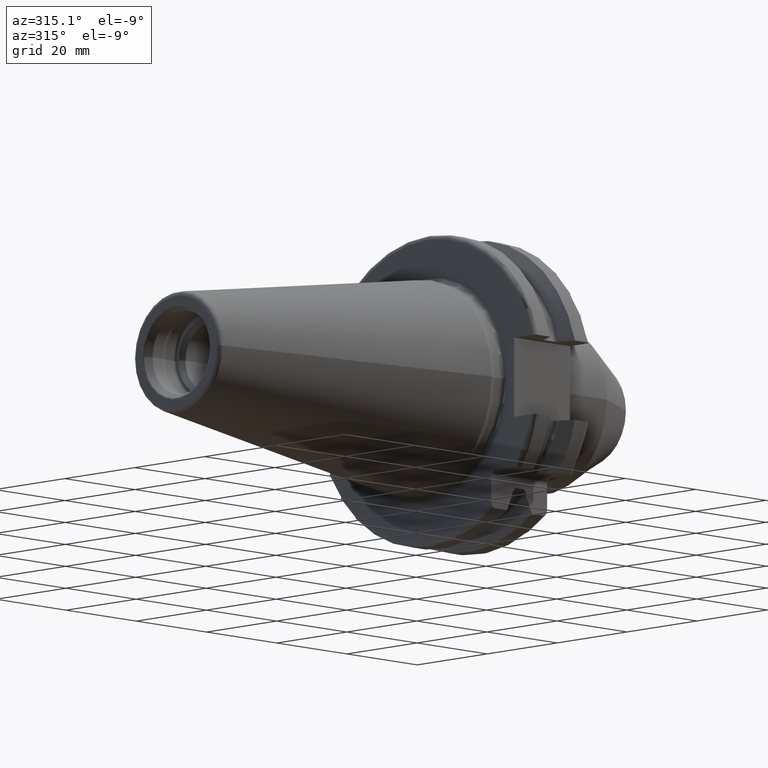
[diagram: clean part render]
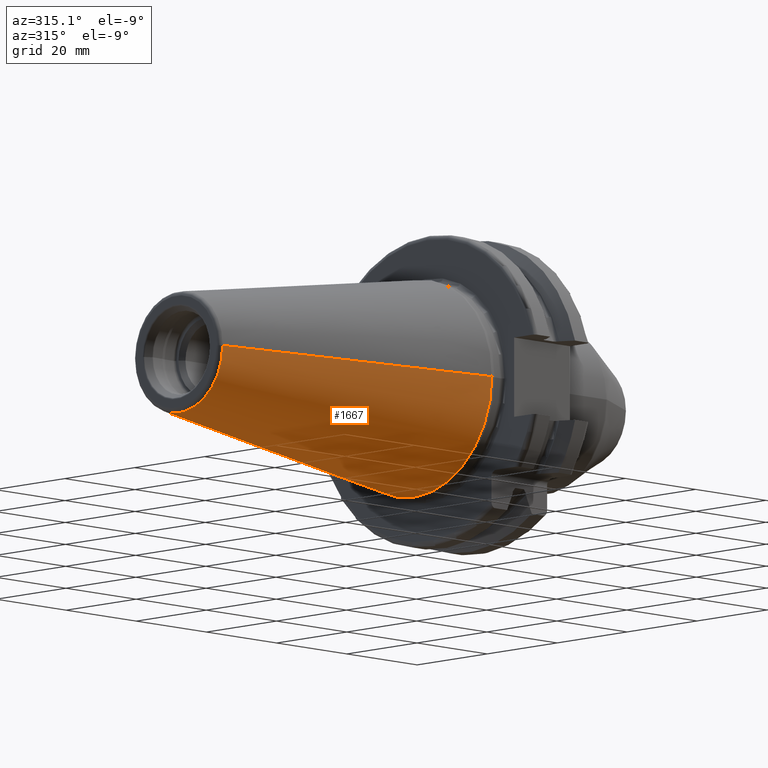
[diagram: same view with one face highlighted and labeled with its STEP entity id]
A machine part, auxiliary view. The second image highlights one B-rep face of the part: STEP entity #1667.
In plain terms, the highlighted conical surface has half-angle 8.298 deg.
Its self-contained STEP definition (entity closure, byte-faithful):
#32=CARTESIAN_POINT('',(-6.743710273571E1,0.E0,0.E0));
#33=DIRECTION('',(-1.E0,0.E0,0.E0));
#34=DIRECTION('',(0.E0,1.E0,0.E0));
#35=AXIS2_PLACEMENT_3D('',#32,#33,#34);
#47=DIRECTION('',(-9.895312636440E-1,-1.443186691705E-1,0.E0));
#48=VECTOR('',#47,6.765568998391E1);
#49=CARTESIAN_POINT('',(-4.896823332305E-1,2.215358204157E1,0.E0));
#50=LINE('',#49,#48);
#51=DIRECTION('',(-9.895312636440E-1,1.443186691705E-1,0.E0));
#52=VECTOR('',#51,6.765568998391E1);
#53=CARTESIAN_POINT('',(-4.896823332305E-1,-2.215358204157E1,0.E0));
#54=LINE('',#53,#52);
#55=CARTESIAN_POINT('',(-4.896823332305E-1,0.E0,0.E0));
#56=DIRECTION('',(-1.E0,0.E0,0.E0));
#57=DIRECTION('',(0.E0,1.E0,0.E0));
#58=AXIS2_PLACEMENT_3D('',#55,#56,#57);
#1330=CARTESIAN_POINT('',(-6.743710273571E1,1.238960290128E1,0.E0));
#1332=VERTEX_POINT('',#1330);
#1334=CARTESIAN_POINT('',(-6.743710273571E1,-1.238960290128E1,0.E0));
#1336=VERTEX_POINT('',#1334);
#1398=CARTESIAN_POINT('',(-4.896823332305E-1,2.215358204157E1,0.E0));
#1399=VERTEX_POINT('',#1398);
#1400=CARTESIAN_POINT('',(-4.896823332305E-1,-2.215358204157E1,0.E0));
#1401=VERTEX_POINT('',#1400);
#1655=CARTESIAN_POINT('',(-3.396339253447E1,0.E0,0.E0));
#1656=DIRECTION('',(1.E0,0.E0,0.E0));
#1657=DIRECTION('',(0.E0,-1.E0,0.E0));
#1658=AXIS2_PLACEMENT_3D('',#1655,#1656,#1657);
#1659=CONICAL_SURFACE('',#1658,1.727159247143E1,8.297826828206E0);
#1660=ORIENTED_EDGE('',*,*,#1645,.T.);
#1661=ORIENTED_EDGE('',*,*,#1622,.T.);
#1662=ORIENTED_EDGE('',*,*,#1649,.F.);
#1664=ORIENTED_EDGE('',*,*,#1663,.F.);
#1665=EDGE_LOOP('',(#1660,#1661,#1662,#1664));
#1666=FACE_OUTER_BOUND('',#1665,.F.);
#1667=ADVANCED_FACE('',(#1666),#1659,.T.);
#36=CIRCLE('',#35,1.238960290128E1);
#59=CIRCLE('',#58,2.215358204157E1);
#1622=EDGE_CURVE('',#1332,#1336,#36,.T.);
#1645=EDGE_CURVE('',#1399,#1332,#50,.T.);
#1649=EDGE_CURVE('',#1401,#1336,#54,.T.);
#1663=EDGE_CURVE('',#1399,#1401,#59,.T.);